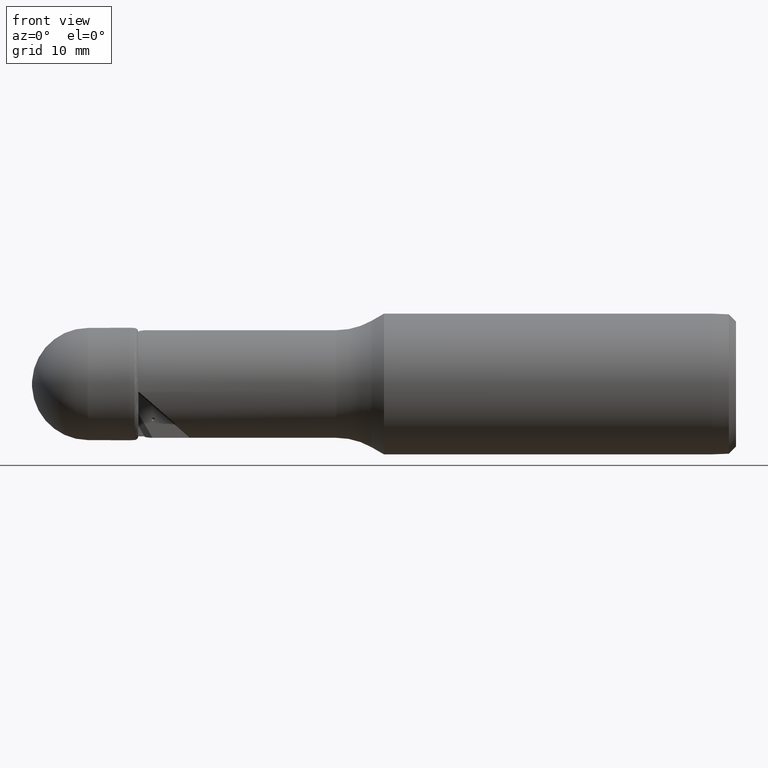
[diagram: clean part render]
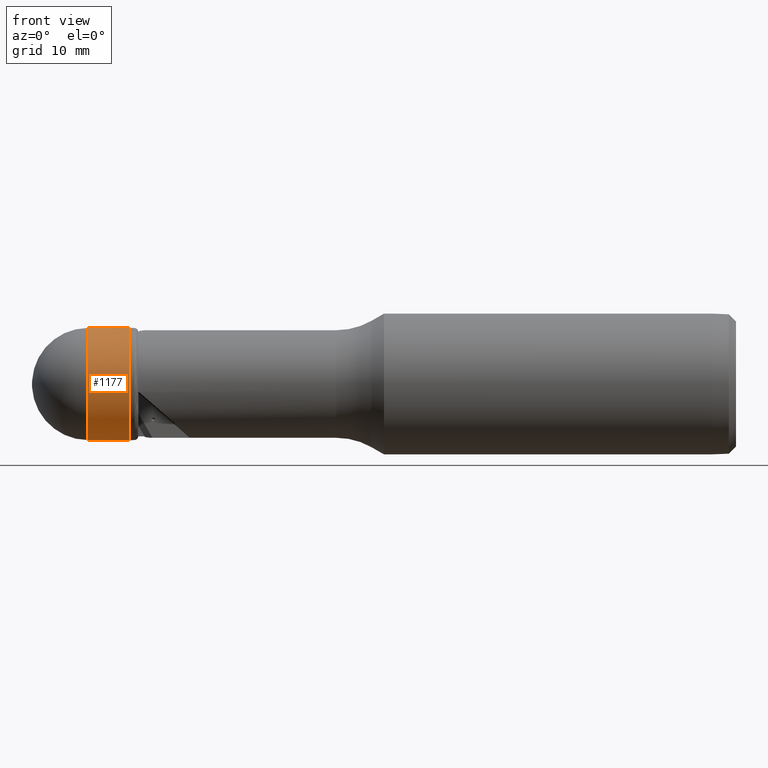
[diagram: same view with one face highlighted and labeled with its STEP entity id]
A machine part, front view. The second image highlights one B-rep face of the part: STEP entity #1177.
In plain terms, the highlighted conical surface has half-angle 0.314 deg.
Its self-contained STEP definition (entity closure, byte-faithful):
#24 = DIRECTION ( 'NONE',  ( 0.0000000000000000000, 0.0000000000000000000, 1.000000000000000000 ) ) ;
#36 = VERTEX_POINT ( 'NONE', #2989 ) ;
#153 = VECTOR ( 'NONE', #2310, 1000.000000000000227 ) ;
#236 = AXIS2_PLACEMENT_3D ( 'NONE', #2721, #1303, #3292 ) ;
#370 = CARTESIAN_POINT ( 'NONE',  ( 8.239061433749462537, 0.0000000000000000000, 7.964400446483643314 ) ) ;
#625 = LINE ( 'NONE', #1344, #153 ) ;
#705 = EDGE_CURVE ( 'NONE', #1144, #36, #625, .T. ) ;
#927 = AXIS2_PLACEMENT_3D ( 'NONE', #3264, #988, #24 ) ;
#988 = DIRECTION ( 'NONE',  ( -1.000000000000000000, -0.0000000000000000000, -0.0000000000000000000 ) ) ;
#1050 = DIRECTION ( 'NONE',  ( -1.000000000000000000, -0.0000000000000000000, -0.0000000000000000000 ) ) ;
#1065 = LINE ( 'NONE', #1831, #1976 ) ;
#1119 = CARTESIAN_POINT ( 'NONE',  ( 8.239061433749462537, 0.0000000000000000000, 0.0000000000000000000 ) ) ;
#1144 = VERTEX_POINT ( 'NONE', #2737 ) ;
#1177 = ADVANCED_FACE ( 'NONE', ( #1463 ), #3100, .T. ) ;
#1303 = DIRECTION ( 'NONE',  ( 1.000000000000000000, 0.0000000000000000000, 0.0000000000000000000 ) ) ;
#1344 = CARTESIAN_POINT ( 'NONE',  ( 8.239061433749462537, 0.0000000000000000000, -7.964400446483643314 ) ) ;
#1463 = FACE_OUTER_BOUND ( 'NONE', #2043, .T. ) ;
#1487 = ORIENTED_EDGE ( 'NONE', *, *, #2007, .T. ) ;
#1512 = ORIENTED_EDGE ( 'NONE', *, *, #2795, .F. ) ;
#1763 = CIRCLE ( 'NONE', #927, 7.996875029603660145 ) ;
#1831 = CARTESIAN_POINT ( 'NONE',  ( 8.239061433749462537, 9.753577513913943907E-16, 7.964400446483643314 ) ) ;
#1850 = ORIENTED_EDGE ( 'NONE', *, *, #2075, .F. ) ;
#1976 = VECTOR ( 'NONE', #2350, 1000.000000000000227 ) ;
#2007 = EDGE_CURVE ( 'NONE', #36, #2792, #1763, .T. ) ;
#2015 = CARTESIAN_POINT ( 'NONE',  ( 14.17221331347422897, 9.793347408185518693E-16, 7.996875029603660145 ) ) ;
#2043 = EDGE_LOOP ( 'NONE', ( #1850, #1512, #2130, #1487 ) ) ;
#2075 = EDGE_CURVE ( 'NONE', #2495, #2792, #1065, .T. ) ;
#2130 = ORIENTED_EDGE ( 'NONE', *, *, #705, .T. ) ;
#2137 = CIRCLE ( 'NONE', #2348, 7.964400446483643314 ) ;
#2310 = DIRECTION ( 'NONE',  ( 0.9999850212185458220, 0.0000000000000000000, -0.005473329749286643016 ) ) ;
#2335 = DIRECTION ( 'NONE',  ( 0.0000000000000000000, 0.0000000000000000000, 1.000000000000000000 ) ) ;
#2348 = AXIS2_PLACEMENT_3D ( 'NONE', #1119, #1050, #2335 ) ;
#2350 = DIRECTION ( 'NONE',  ( 0.9999850212185458220, 6.702895758141873204E-19, 0.005473329749286643016 ) ) ;
#2495 = VERTEX_POINT ( 'NONE', #370 ) ;
#2721 = CARTESIAN_POINT ( 'NONE',  ( 8.239061433749462537, 0.0000000000000000000, 0.0000000000000000000 ) ) ;
#2737 = CARTESIAN_POINT ( 'NONE',  ( 8.239061433749462537, 9.753577513913945879E-16, -7.964400446483643314 ) ) ;
#2792 = VERTEX_POINT ( 'NONE', #2015 ) ;
#2795 = EDGE_CURVE ( 'NONE', #1144, #2495, #2137, .T. ) ;
#2989 = CARTESIAN_POINT ( 'NONE',  ( 14.17221331347422897, 0.0000000000000000000, -7.996875029603660145 ) ) ;
#3100 = CONICAL_SURFACE ( 'NONE', #236, 7.964400446483643314, 0.005473357077387093136 ) ;
#3264 = CARTESIAN_POINT ( 'NONE',  ( 14.17221331347422897, 0.0000000000000000000, 0.0000000000000000000 ) ) ;
#3292 = DIRECTION ( 'NONE',  ( 0.0000000000000000000, 0.0000000000000000000, -1.000000000000000000 ) ) ;